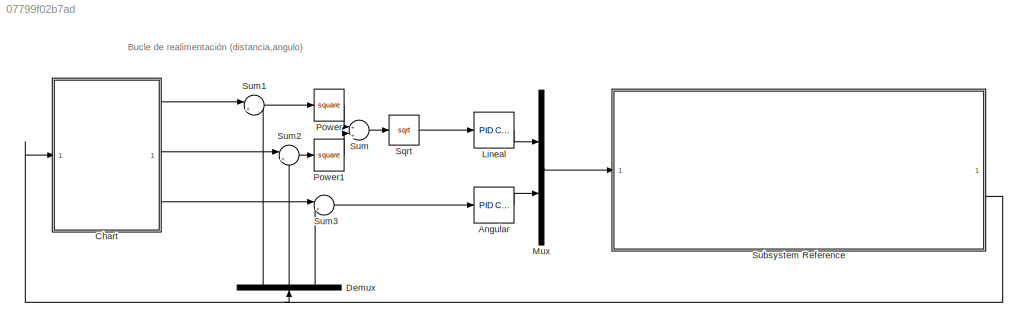
MODEL slx_07799f02b7ad
KIND model
CONFIG AbsTol = auto
CONFIG EnableMultiTasking = on
CONFIG FixedStep = auto
CONFIG MaxStep = auto
CONFIG MinStep = auto
CONFIG RelTol = 1e-3
CONFIG SampleTimeConstraint = Unconstrained
CONFIG SolverName = FixedStepAuto
CONFIG StartTime = 0.0
CONFIG StopTime = 40
WORKSPACE source: mxarray member
WORKSPACE d = 0.15
BLOCK [Reference] Angular  REF=slpidlib/PID Controller
  LibrarySourceBlock = simulink/Continuous/PID Controller
  SourceBlock = slpidlib/PID Controller
  SourceType = PID 1dof
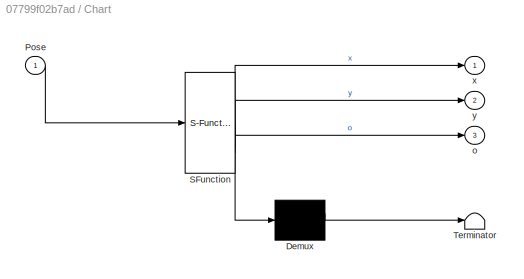
BLOCK [SubSystem] Chart
  ErrorFcn = Stateflow.Translate.translate
  PermitHierarchicalResolution = ExplicitOnly
  SFBlockType = Chart
  TreatAsAtomicUnit = on
BLOCK [Demux] Chart/ Demux 
  Outputs = 1
BLOCK [S-Function] Chart/ SFunction 
  EnableBusSupport = on
  FunctionName = sf_sfun
  PortCounts = [1 4]
  SFcnIsStateOwnerBlock = off
  SFunctionDeploymentMode = off
  Tag = Stateflow S-Function 3
BLOCK [Terminator] Chart/ Terminator 
BLOCK [Inport] Chart/Pose
BLOCK [Outport] Chart/o
  Port = 3
BLOCK [Outport] Chart/x
BLOCK [Outport] Chart/y
  Port = 2
BLOCK [Demux] Demux
  NameLocation = right
  Outputs = 3
BLOCK [Reference] Lineal  REF=slpidlib/PID Controller
  LibrarySourceBlock = simulink/Continuous/PID Controller
  SourceBlock = slpidlib/PID Controller
  SourceType = PID 1dof
BLOCK [Mux] Mux
  DisplayOption = bar
  Inputs = 2
BLOCK [Math] Power
  Operator = square
BLOCK [Math] Power1
  Operator = square
BLOCK [Sqrt] Sqrt
BLOCK [SubSystem] Subsystem Reference
  ReferencedSubsystem = PieroCalculos
BLOCK [Sum] Sum
  Inputs = +|+
BLOCK [Sum] Sum1
  Inputs = |+-
BLOCK [Sum] Sum2
  Inputs = |+-
BLOCK [Sum] Sum3
  Inputs = |+-
ANNOTATION (root): Bucle de realimentación (distancia,angulo)
LINE Angular:1 -> Mux:2
LINE Chart:1 -> Sum1:1
LINE Chart:2 -> Sum2:1
LINE Chart:3 -> Sum3:1
LINE Demux:1 -> Sum1:2
LINE Demux:2 -> Sum2:2
LINE Demux:3 -> Sum3:2
LINE Lineal:1 -> Mux:1
LINE Mux:1 -> Subsystem Reference:1
LINE Power1:1 -> Sum:2
LINE Power:1 -> Sum:1
LINE Sqrt:1 -> Lineal:1
NET Subsystem Reference:2 -> Chart:1, Demux:1
LINE Sum1:1 -> Power:1
LINE Sum2:1 -> Power1:1
LINE Sum3:1 -> Angular:1
LINE Sum:1 -> Sqrt:1
note: NET lines group one-source signal fan-out (src -> all destinations, sorted); 1:1 wires keep LINE
CHART Chart states=12 transitions=12
  STATE_LABEL 'Avanza3\nentry:\nx=1.9;\ny=1.6;\no=-2*pi;\n'
  STATE_LABEL 'Giro2\nentry:\nx=1.9;\ny=1.6;\no=-5*pi/2;\n'
  STATE_LABEL 'Giro1\nentry:\nx=0.35;\ny=1.6;\no=-2*pi;\n'
  STATE_LABEL 'Avanza4\nentry:\nx=1.9;\ny=0;\no=-5*pi/2;\n'
  STATE_LABEL 'Avanza2\nentry:\nx=0.35;\ny=1.6;\no=-3*pi/2;\n'
  STATE_LABEL 'Circunferencia\nentry:\nx=0.35;\ny=0.8;\no=-3*pi/2;\n'
  STATE_LABEL 'Giro3\nentry:\nx=1.9;\ny=0;\no=-9*pi/4;\n'
  STATE_LABEL 'Avanza5\nentry:\nx=1.9+cos(-pi/4);\ny=0+sin(-pi/4);\no=-9*pi/4;\n'
  STATE_LABEL 'Avanza1\nentry:\nx=1.15;\ny=0;\no=0;\n'
  STATE_LABEL 'Giro_180\nentry:\nx=1.15;\ny=-0.15;\no=-pi;\n'
  STATE_LABEL 'Inicio\nentry:\nx=0;\ny=0;\no=0;'
  STATE_LABEL 'Parada\nentry:\nx=1.9+cos(-pi/4);\ny=0+sin(-pi/4);\no=-9*pi/4;\n'
CHART  states=0 transitions=0
